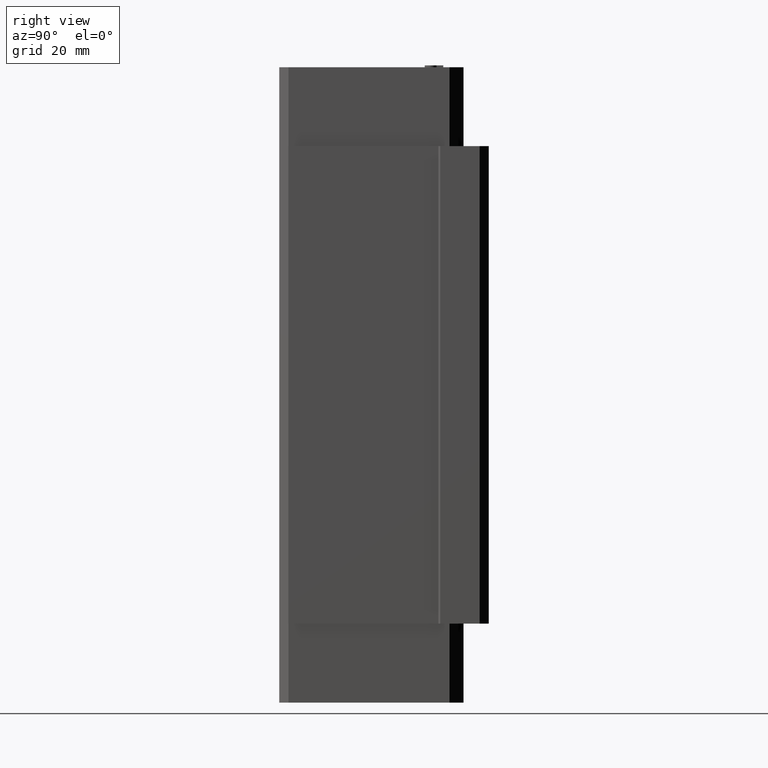
[diagram: clean part render]
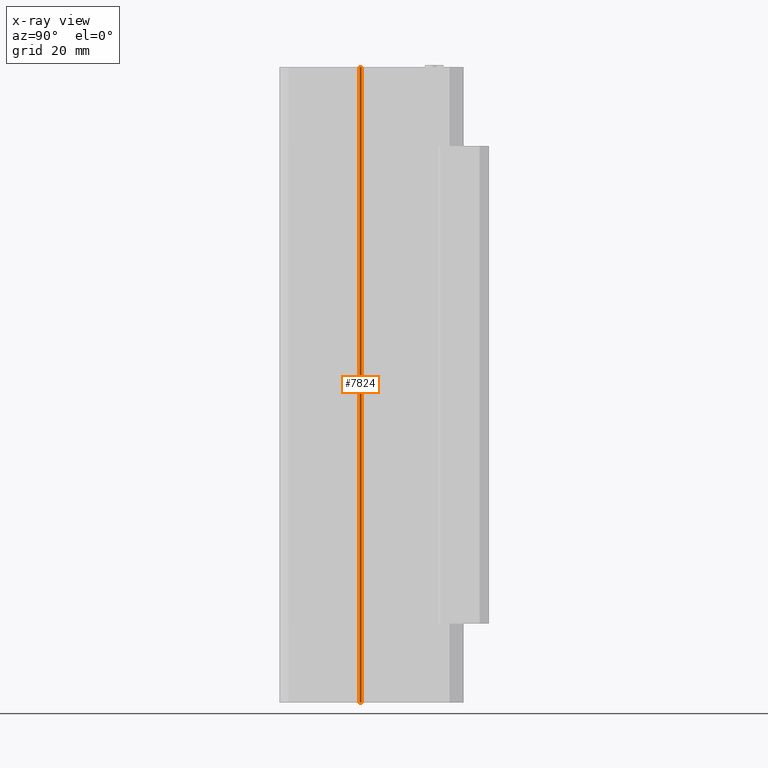
[diagram: x-ray — body ghosted, one internal face saturated and labeled with its STEP entity id]
A machine part, right view, then the same camera in x-ray: the body is ghosted and one INTERNAL B-rep face — a face not visible from any outside direction — is saturated and labeled: STEP entity #7824.
In plain terms, the highlighted cylindrical surface (edge-blend (fillet) strip) has radius 0.5 mm, axis along (0, 0, 1).
Its self-contained STEP definition (entity closure, byte-faithful):
#1782 = DIRECTION ( 'NONE',  ( 0.0000000000000000000, 0.0000000000000000000, -1.000000000000000000 ) ) ;
#1783 = VECTOR ( 'NONE', #1782, 1000.000000000000000 ) ;
#1784 = CARTESIAN_POINT ( 'NONE',  ( 11.50000000000000000, -3.298408781186000100, -39.29999999999999700 ) ) ;
#1785 = LINE ( 'NONE', #1784, #1783 ) ;
#1806 = CARTESIAN_POINT ( 'NONE',  ( 11.50000000000000000, -3.298408781186000100, -52.29999999999999700 ) ) ;
#1821 = CARTESIAN_POINT ( 'NONE',  ( 11.50000000000000000, -3.298408781186000100, 52.29999999999999000 ) ) ;
#1870 = CARTESIAN_POINT ( 'NONE',  ( 11.35355339059474900, -2.944855390589875600, -52.29999999999999700 ) ) ;
#1908 = DIRECTION ( 'NONE',  ( 1.000000000000000000, 0.0000000000000000000, 0.0000000000000000000 ) ) ;
#1909 = DIRECTION ( 'NONE',  ( 0.0000000000000000000, 0.0000000000000000000, 1.000000000000000000 ) ) ;
#1910 = CARTESIAN_POINT ( 'NONE',  ( 11.00000000000000000, -3.298408781186000100, -39.29999999999999700 ) ) ;
#1911 = AXIS2_PLACEMENT_3D ( 'NONE', #1910, #1909, #1908 ) ;
#1912 = CYLINDRICAL_SURFACE ( 'NONE', #1911, 0.5000000000000004400 ) ;
#1914 = FACE_OUTER_BOUND ( 'NONE', #7825, .T. ) ;
#1915 = DIRECTION ( 'NONE',  ( 0.0000000000000000000, 0.0000000000000000000, 1.000000000000000000 ) ) ;
#1916 = VECTOR ( 'NONE', #1915, 1000.000000000000000 ) ;
#1917 = CARTESIAN_POINT ( 'NONE',  ( 11.35355339059393700, -2.944855390589063800, -39.29999999999999700 ) ) ;
#1918 = LINE ( 'NONE', #1917, #1916 ) ;
#1919 = DIRECTION ( 'NONE',  ( 1.000000000000000000, 0.0000000000000000000, 0.0000000000000000000 ) ) ;
#1920 = DIRECTION ( 'NONE',  ( 0.0000000000000000000, 0.0000000000000000000, 1.000000000000000000 ) ) ;
#1921 = CARTESIAN_POINT ( 'NONE',  ( 11.00000000000000000, -3.298408781186000100, -52.29999999999999700 ) ) ;
#1922 = AXIS2_PLACEMENT_3D ( 'NONE', #1921, #1920, #1919 ) ;
#1923 = CIRCLE ( 'NONE', #1922, 0.5000000000000004400 ) ;
#1925 = CARTESIAN_POINT ( 'NONE',  ( 11.35355339059474900, -2.944855390589875600, 52.29999999999999000 ) ) ;
#1926 = DIRECTION ( 'NONE',  ( 1.000000000000000000, 4.336808689942013800E-015, 0.0000000000000000000 ) ) ;
#1927 = DIRECTION ( 'NONE',  ( 0.0000000000000000000, 0.0000000000000000000, -1.000000000000000000 ) ) ;
#1928 = CARTESIAN_POINT ( 'NONE',  ( 11.00000000000000000, -3.298408781186000100, 52.29999999999999000 ) ) ;
#1929 = AXIS2_PLACEMENT_3D ( 'NONE', #1928, #1927, #1926 ) ;
#1930 = CIRCLE ( 'NONE', #1929, 0.5000000000000004400 ) ;
#7752 = EDGE_CURVE ( 'NONE', #7763, #7771, #1785, .T. ) ;
#7763 = VERTEX_POINT ( 'NONE', #1821 ) ;
#7771 = VERTEX_POINT ( 'NONE', #1806 ) ;
#7811 = ORIENTED_EDGE ( 'NONE', *, *, #7821, .F. ) ;
#7814 = VERTEX_POINT ( 'NONE', #1870 ) ;
#7816 = EDGE_CURVE ( 'NONE', #7819, #7763, #1930, .T. ) ;
#7817 = ORIENTED_EDGE ( 'NONE', *, *, #7752, .F. ) ;
#7818 = ORIENTED_EDGE ( 'NONE', *, *, #7816, .F. ) ;
#7819 = VERTEX_POINT ( 'NONE', #1925 ) ;
#7821 = EDGE_CURVE ( 'NONE', #7771, #7814, #1923, .T. ) ;
#7822 = ORIENTED_EDGE ( 'NONE', *, *, #7823, .F. ) ;
#7823 = EDGE_CURVE ( 'NONE', #7814, #7819, #1918, .T. ) ;
#7824 = ADVANCED_FACE ( 'NONE', ( #1914 ), #1912, .F. ) ;
#7825 = EDGE_LOOP ( 'NONE', ( #7822, #7811, #7817, #7818 ) ) ;